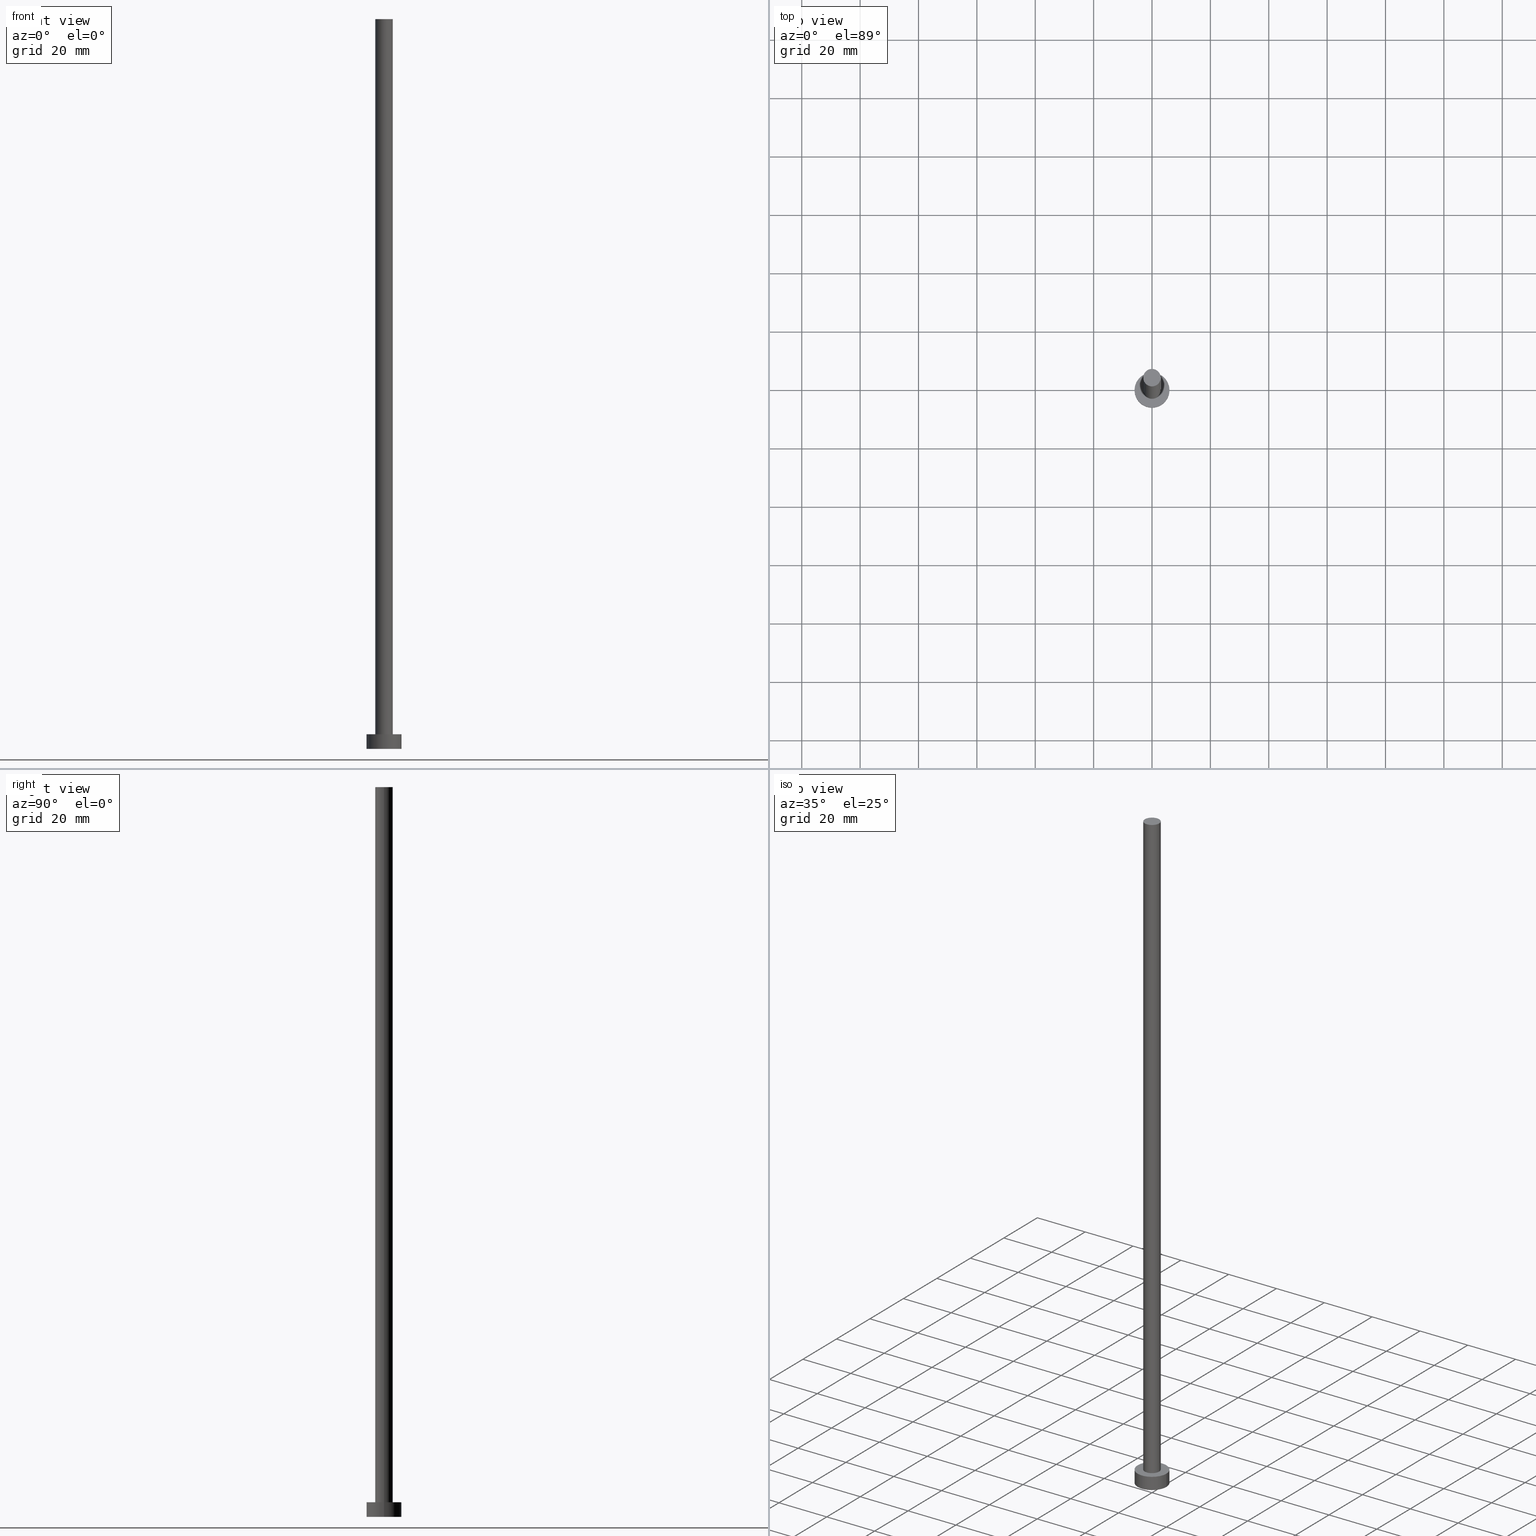
[diagram: canonical four-view strip — front | top / right | iso, engineering-drawing reading convention]
A machine part, canonical four-view strip (front | top / right | iso — engineering-drawing reading convention). The complete STEP part file that produces these views, byte-faithful:
ISO-10303-21;
HEADER;
FILE_DESCRIPTION (( 'STEP AP203' ),
    '1' );
FILE_NAME ('73fd.STEP',
    '2023-02-13T12:37:43',
    ( '' ),
    ( '' ),
    'SwSTEP 2.0',
    'SolidWorks 2019',
    '' );
FILE_SCHEMA (( 'CONFIG_CONTROL_DESIGN' ));
ENDSEC;

DATA;
#1 = CIRCLE ( 'NONE', #82, 6.000000000000000888 ) ;
#2 = PERSON ( 'NEUR�EN�', 'NEUR�EN�', 'NEUR�EN�', ('NEUR�EN�'), ('NEUR�EN�'), ('NEUR�EN�') ) ;
#3 = DIRECTION ( 'NONE',  ( 1.000000000000000000, 0.000000000000000000, -0.000000000000000000 ) ) ;
#4 = CIRCLE ( 'NONE', #67, 6.000000000000000888 ) ;
#5 = CALENDAR_DATE ( 2023, 13, 2 ) ;
#6 = APPLICATION_CONTEXT ( 'configuration controlled 3d designs of mechanical parts and assemblies' ) ;
#7 = DATE_AND_TIME ( #5, #143 ) ;
#8 = APPROVAL_PERSON_ORGANIZATION ( #160, #114, #117 ) ;
#9 = CYLINDRICAL_SURFACE ( 'NONE', #40, 6.000000000000000888 ) ;
#10 = DIRECTION ( 'NONE',  ( 0.000000000000000000, 0.000000000000000000, 1.000000000000000000 ) ) ;
#11 = ORIENTED_EDGE ( 'NONE', *, *, #78, .T. ) ;
#12 = DIRECTION ( 'NONE',  ( -0.000000000000000000, -0.000000000000000000, -1.000000000000000000 ) ) ;
#13 = CC_DESIGN_PERSON_AND_ORGANIZATION_ASSIGNMENT ( #206, #166, ( #43 ) ) ;
#14 = ORIENTED_EDGE ( 'NONE', *, *, #101, .T. ) ;
#15 = MECHANICAL_CONTEXT ( 'NONE', #6, 'mechanical' ) ;
#16 = APPROVAL_ROLE ( '' ) ;
#17 = AXIS2_PLACEMENT_3D ( 'NONE', #84, #163, #3 ) ;
#18 = CALENDAR_DATE ( 2023, 13, 2 ) ;
#19 = AXIS2_PLACEMENT_3D ( 'NONE', #153, #211, #103 ) ;
#20 = EDGE_CURVE ( 'NONE', #201, #32, #96, .T. ) ;
#21 = DIRECTION ( 'NONE',  ( 1.000000000000000000, 0.000000000000000000, 0.000000000000000000 ) ) ;
#22 = DIRECTION ( 'NONE',  ( -1.000000000000000000, 0.000000000000000000, 0.000000000000000000 ) ) ;
#23 = ORIENTED_EDGE ( 'NONE', *, *, #158, .F. ) ;
#24 = ADVANCED_FACE ( 'NONE', ( #73, #112 ), #235, .T. ) ;
#25 = FACE_OUTER_BOUND ( 'NONE', #205, .T. ) ;
#26 = COORDINATED_UNIVERSAL_TIME_OFFSET ( 1, 0, .AHEAD. ) ;
#27 = APPROVAL_STATUS ( 'not_yet_approved' ) ;
#28 = CALENDAR_DATE ( 2023, 13, 2 ) ;
#29 = AXIS2_PLACEMENT_3D ( 'NONE', #140, #10, #161 ) ;
#30 = APPROVAL_DATE_TIME ( #193, #114 ) ;
#31 = CARTESIAN_POINT ( 'NONE',  ( 0.000000000000000000, 0.000000000000000000, 5.000000000000000000 ) ) ;
#32 = VERTEX_POINT ( 'NONE', #210 ) ;
#33 = ADVANCED_BREP_SHAPE_REPRESENTATION ( '73fd', ( #237, #19 ), #113 ) ;
#34 = CARTESIAN_POINT ( 'NONE',  ( 3.000000000000000444, 3.673940397442060361E-16, 250.0000000000000000 ) ) ;
#35 = CIRCLE ( 'NONE', #52, 3.000000000000000444 ) ;
#36 = DIRECTION ( 'NONE',  ( 1.000000000000000000, 0.000000000000000000, 0.000000000000000000 ) ) ;
#37 =( NAMED_UNIT ( * ) SI_UNIT ( $, .STERADIAN. ) SOLID_ANGLE_UNIT ( ) );
#38 = PERSON_AND_ORGANIZATION_ROLE ( 'design_supplier' ) ;
#39 = CYLINDRICAL_SURFACE ( 'NONE', #183, 3.000000000000000444 ) ;
#40 = AXIS2_PLACEMENT_3D ( 'NONE', #81, #118, #102 ) ;
#41 = ORIENTED_EDGE ( 'NONE', *, *, #158, .T. ) ;
#42 = DATE_TIME_ROLE ( 'classification_date' ) ;
#43 = PRODUCT ( '73fd', '73fd', '', ( #15 ) ) ;
#44 = CIRCLE ( 'NONE', #128, 6.000000000000000888 ) ;
#45 = VERTEX_POINT ( 'NONE', #127 ) ;
#46 = CARTESIAN_POINT ( 'NONE',  ( 3.000000000000000444, 3.673940397442060361E-16, 5.000000000000000000 ) ) ;
#47 = EDGE_LOOP ( 'NONE', ( #188, #199 ) ) ;
#48 = CLOSED_SHELL ( 'NONE', ( #185, #194, #129, #24, #151, #59, #63 ) ) ;
#49 = EDGE_LOOP ( 'NONE', ( #144, #224, #186, #83 ) ) ;
#50 = APPLICATION_PROTOCOL_DEFINITION ( 'international standard', 'config_control_design', 1994, #6 ) ;
#51 = CC_DESIGN_DATE_AND_TIME_ASSIGNMENT ( #111, #165, ( #248 ) ) ;
#52 = AXIS2_PLACEMENT_3D ( 'NONE', #157, #98, #155 ) ;
#53 = DIRECTION ( 'NONE',  ( 1.000000000000000000, 0.000000000000000000, -0.000000000000000000 ) ) ;
#54 = DIRECTION ( 'NONE',  ( 0.000000000000000000, 0.000000000000000000, 1.000000000000000000 ) ) ;
#55 = EDGE_CURVE ( 'NONE', #124, #164, #35, .T. ) ;
#56 = CALENDAR_DATE ( 2023, 13, 2 ) ;
#57 = DIRECTION ( 'NONE',  ( -0.000000000000000000, -0.000000000000000000, -1.000000000000000000 ) ) ;
#58 = LOCAL_TIME ( 13, 37, 43.00000000000000000, #189 ) ;
#59 = ADVANCED_FACE ( 'NONE', ( #174 ), #39, .T. ) ;
#60 = PERSON_AND_ORGANIZATION ( #2, #244 ) ;
#61 = DATE_AND_TIME ( #215, #204 ) ;
#62 = LOCAL_TIME ( 13, 37, 43.00000000000000000, #159 ) ;
#63 = ADVANCED_FACE ( 'NONE', ( #25 ), #92, .T. ) ;
#64 = ORIENTED_EDGE ( 'NONE', *, *, #78, .F. ) ;
#65 = ORIENTED_EDGE ( 'NONE', *, *, #20, .T. ) ;
#66 = ORIENTED_EDGE ( 'NONE', *, *, #137, .F. ) ;
#67 = AXIS2_PLACEMENT_3D ( 'NONE', #31, #100, #36 ) ;
#68 = PERSON_AND_ORGANIZATION ( #2, #244 ) ;
#69 = AXIS2_PLACEMENT_3D ( 'NONE', #225, #203, #148 ) ;
#70 = PRODUCT_DEFINITION_FORMATION_WITH_SPECIFIED_SOURCE ( 'LIBOVOLN�', '', #43, .NOT_KNOWN. ) ;
#71 = DIRECTION ( 'NONE',  ( 1.000000000000000000, 0.000000000000000000, 0.000000000000000000 ) ) ;
#72 = DIRECTION ( 'NONE',  ( -1.000000000000000000, 0.000000000000000000, 0.000000000000000000 ) ) ;
#73 = FACE_BOUND ( 'NONE', #47, .T. ) ;
#74 = DIRECTION ( 'NONE',  ( -0.000000000000000000, -0.000000000000000000, -1.000000000000000000 ) ) ;
#75 = CARTESIAN_POINT ( 'NONE',  ( -3.000000000000000444, 0.000000000000000000, 5.000000000000000000 ) ) ;
#76 = EDGE_LOOP ( 'NONE', ( #162, #23 ) ) ;
#77 = CIRCLE ( 'NONE', #132, 3.000000000000000444 ) ;
#78 = EDGE_CURVE ( 'NONE', #85, #141, #77, .T. ) ;
#79 = UNCERTAINTY_MEASURE_WITH_UNIT (LENGTH_MEASURE( 1.000000000000000082E-05 ), #171, 'distance_accuracy_value', 'NONE');
#80 = APPROVAL_DATE_TIME ( #7, #178 ) ;
#81 = CARTESIAN_POINT ( 'NONE',  ( 0.000000000000000000, 0.000000000000000000, 5.000000000000000000 ) ) ;
#82 = AXIS2_PLACEMENT_3D ( 'NONE', #105, #150, #126 ) ;
#83 = ORIENTED_EDGE ( 'NONE', *, *, #55, .T. ) ;
#84 = CARTESIAN_POINT ( 'NONE',  ( 0.000000000000000000, 0.000000000000000000, 0.000000000000000000 ) ) ;
#85 = VERTEX_POINT ( 'NONE', #131 ) ;
#86 = EDGE_LOOP ( 'NONE', ( #168, #247 ) ) ;
#87 = CC_DESIGN_PERSON_AND_ORGANIZATION_ASSIGNMENT ( #217, #38, ( #70 ) ) ;
#88 = CC_DESIGN_APPROVAL ( #114, ( #198 ) ) ;
#89 = CARTESIAN_POINT ( 'NONE',  ( 6.000000000000000888, 7.347880794884120722E-16, 5.000000000000000000 ) ) ;
#90 = CARTESIAN_POINT ( 'NONE',  ( 6.000000000000000888, 7.347880794884120722E-16, 5.000000000000000000 ) ) ;
#91 = CYLINDRICAL_SURFACE ( 'NONE', #69, 6.000000000000000888 ) ;
#92 = PLANE ( 'NONE',  #195 ) ;
#93 = VECTOR ( 'NONE', #74, 1000.000000000000000 ) ;
#94 = APPROVAL ( #228, 'NEUR�EN�' ) ;
#95 = CARTESIAN_POINT ( 'NONE',  ( 0.000000000000000000, 0.000000000000000000, 5.000000000000000000 ) ) ;
#96 = LINE ( 'NONE', #90, #93 ) ;
#97 = APPROVAL_STATUS ( 'not_yet_approved' ) ;
#98 = DIRECTION ( 'NONE',  ( 0.000000000000000000, 0.000000000000000000, 1.000000000000000000 ) ) ;
#99 = CIRCLE ( 'NONE', #29, 6.000000000000000888 ) ;
#100 = DIRECTION ( 'NONE',  ( 0.000000000000000000, 0.000000000000000000, 1.000000000000000000 ) ) ;
#101 = EDGE_CURVE ( 'NONE', #107, #45, #191, .T. ) ;
#102 = DIRECTION ( 'NONE',  ( -1.000000000000000000, 0.000000000000000000, 0.000000000000000000 ) ) ;
#103 = DIRECTION ( 'NONE',  ( 1.000000000000000000, 0.000000000000000000, 0.000000000000000000 ) ) ;
#104 = EDGE_LOOP ( 'NONE', ( #66, #65, #41, #110 ) ) ;
#105 = CARTESIAN_POINT ( 'NONE',  ( 0.000000000000000000, 0.000000000000000000, 0.000000000000000000 ) ) ;
#106 = CYLINDRICAL_SURFACE ( 'NONE', #179, 3.000000000000000444 ) ;
#107 = VERTEX_POINT ( 'NONE', #135 ) ;
#108 = DIRECTION ( 'NONE',  ( 0.000000000000000000, 0.000000000000000000, 1.000000000000000000 ) ) ;
#109 = CARTESIAN_POINT ( 'NONE',  ( 0.000000000000000000, 0.000000000000000000, 250.0000000000000000 ) ) ;
#110 = ORIENTED_EDGE ( 'NONE', *, *, #101, .F. ) ;
#111 = DATE_AND_TIME ( #56, #169 ) ;
#112 = FACE_OUTER_BOUND ( 'NONE', #86, .T. ) ;
#113 =( GEOMETRIC_REPRESENTATION_CONTEXT ( 3 ) GLOBAL_UNCERTAINTY_ASSIGNED_CONTEXT ( ( #79 ) ) GLOBAL_UNIT_ASSIGNED_CONTEXT ( ( #171, #230, #37 ) ) REPRESENTATION_CONTEXT ( 'NONE', 'WORKASPACE' ) );
#114 = APPROVAL ( #27, 'NEUR�EN�' ) ;
#115 = AXIS2_PLACEMENT_3D ( 'NONE', #95, #152, #53 ) ;
#116 = PRODUCT_RELATED_PRODUCT_CATEGORY ( 'detail', '', ( #43 ) ) ;
#117 = APPROVAL_ROLE ( '' ) ;
#118 = DIRECTION ( 'NONE',  ( -0.000000000000000000, -0.000000000000000000, -1.000000000000000000 ) ) ;
#119 = ORIENTED_EDGE ( 'NONE', *, *, #134, .F. ) ;
#120 = ORIENTED_EDGE ( 'NONE', *, *, #242, .T. ) ;
#121 = FACE_OUTER_BOUND ( 'NONE', #76, .T. ) ;
#122 = ORIENTED_EDGE ( 'NONE', *, *, #145, .T. ) ;
#123 = CC_DESIGN_PERSON_AND_ORGANIZATION_ASSIGNMENT ( #220, #197, ( #198 ) ) ;
#124 = VERTEX_POINT ( 'NONE', #75 ) ;
#125 = CARTESIAN_POINT ( 'NONE',  ( 0.000000000000000000, 0.000000000000000000, 250.0000000000000000 ) ) ;
#126 = DIRECTION ( 'NONE',  ( 1.000000000000000000, 0.000000000000000000, 0.000000000000000000 ) ) ;
#127 = CARTESIAN_POINT ( 'NONE',  ( -6.000000000000000888, 0.000000000000000000, 0.000000000000000000 ) ) ;
#128 = AXIS2_PLACEMENT_3D ( 'NONE', #245, #219, #223 ) ;
#129 = ADVANCED_FACE ( 'NONE', ( #213 ), #9, .T. ) ;
#130 = CC_DESIGN_SECURITY_CLASSIFICATION ( #198, ( #70 ) ) ;
#131 = CARTESIAN_POINT ( 'NONE',  ( 3.000000000000000444, 3.673940397442060361E-16, 250.0000000000000000 ) ) ;
#132 = AXIS2_PLACEMENT_3D ( 'NONE', #154, #54, #236 ) ;
#133 = APPROVAL_DATE_TIME ( #252, #94 ) ;
#134 = EDGE_CURVE ( 'NONE', #107, #201, #4, .T. ) ;
#135 = CARTESIAN_POINT ( 'NONE',  ( -6.000000000000000888, 0.000000000000000000, 5.000000000000000000 ) ) ;
#136 = COORDINATED_UNIVERSAL_TIME_OFFSET ( 1, 0, .AHEAD. ) ;
#137 = EDGE_CURVE ( 'NONE', #201, #107, #99, .T. ) ;
#138 = PERSON_AND_ORGANIZATION_ROLE ( 'creator' ) ;
#139 = DIRECTION ( 'NONE',  ( -0.000000000000000000, -0.000000000000000000, -1.000000000000000000 ) ) ;
#140 = CARTESIAN_POINT ( 'NONE',  ( 0.000000000000000000, 0.000000000000000000, 5.000000000000000000 ) ) ;
#141 = VERTEX_POINT ( 'NONE', #200 ) ;
#142 = CIRCLE ( 'NONE', #177, 3.000000000000000444 ) ;
#143 = LOCAL_TIME ( 13, 37, 43.00000000000000000, #240 ) ;
#144 = ORIENTED_EDGE ( 'NONE', *, *, #145, .F. ) ;
#145 = EDGE_CURVE ( 'NONE', #85, #164, #241, .T. ) ;
#146 = CARTESIAN_POINT ( 'NONE',  ( 0.000000000000000000, 0.000000000000000000, 5.000000000000000000 ) ) ;
#147 = EDGE_LOOP ( 'NONE', ( #64, #122, #222, #243 ) ) ;
#148 = DIRECTION ( 'NONE',  ( -1.000000000000000000, 0.000000000000000000, 0.000000000000000000 ) ) ;
#149 = CARTESIAN_POINT ( 'NONE',  ( -3.000000000000000444, 0.000000000000000000, 250.0000000000000000 ) ) ;
#150 = DIRECTION ( 'NONE',  ( 0.000000000000000000, 0.000000000000000000, 1.000000000000000000 ) ) ;
#151 = ADVANCED_FACE ( 'NONE', ( #121 ), #182, .F. ) ;
#152 = DIRECTION ( 'NONE',  ( 0.000000000000000000, 0.000000000000000000, 1.000000000000000000 ) ) ;
#153 = CARTESIAN_POINT ( 'NONE',  ( 0.000000000000000000, 0.000000000000000000, 0.000000000000000000 ) ) ;
#154 = CARTESIAN_POINT ( 'NONE',  ( 0.000000000000000000, 0.000000000000000000, 250.0000000000000000 ) ) ;
#155 = DIRECTION ( 'NONE',  ( 1.000000000000000000, 0.000000000000000000, 0.000000000000000000 ) ) ;
#156 = CC_DESIGN_DATE_AND_TIME_ASSIGNMENT ( #61, #42, ( #198 ) ) ;
#157 = CARTESIAN_POINT ( 'NONE',  ( 0.000000000000000000, 0.000000000000000000, 5.000000000000000000 ) ) ;
#158 = EDGE_CURVE ( 'NONE', #32, #45, #44, .T. ) ;
#159 = COORDINATED_UNIVERSAL_TIME_OFFSET ( 1, 0, .AHEAD. ) ;
#160 = PERSON_AND_ORGANIZATION ( #2, #244 ) ;
#161 = DIRECTION ( 'NONE',  ( 1.000000000000000000, 0.000000000000000000, 0.000000000000000000 ) ) ;
#162 = ORIENTED_EDGE ( 'NONE', *, *, #242, .F. ) ;
#163 = DIRECTION ( 'NONE',  ( 0.000000000000000000, 0.000000000000000000, 1.000000000000000000 ) ) ;
#164 = VERTEX_POINT ( 'NONE', #46 ) ;
#165 = DATE_TIME_ROLE ( 'creation_date' ) ;
#166 = PERSON_AND_ORGANIZATION_ROLE ( 'design_owner' ) ;
#167 = VECTOR ( 'NONE', #139, 1000.000000000000000 ) ;
#168 = ORIENTED_EDGE ( 'NONE', *, *, #134, .T. ) ;
#169 = LOCAL_TIME ( 13, 37, 43.00000000000000000, #26 ) ;
#170 = ORIENTED_EDGE ( 'NONE', *, *, #20, .F. ) ;
#171 =( LENGTH_UNIT ( ) NAMED_UNIT ( * ) SI_UNIT ( .MILLI., .METRE. ) );
#172 = CARTESIAN_POINT ( 'NONE',  ( 0.000000000000000000, 0.000000000000000000, 250.0000000000000000 ) ) ;
#173 = EDGE_CURVE ( 'NONE', #141, #124, #202, .T. ) ;
#174 = FACE_OUTER_BOUND ( 'NONE', #49, .T. ) ;
#175 = AXIS2_PLACEMENT_3D ( 'NONE', #232, #108, #71 ) ;
#176 = APPLICATION_CONTEXT ( 'configuration controlled 3d designs of mechanical parts and assemblies' ) ;
#177 = AXIS2_PLACEMENT_3D ( 'NONE', #146, #208, #21 ) ;
#178 = APPROVAL ( #97, 'NEUR�EN�' ) ;
#179 = AXIS2_PLACEMENT_3D ( 'NONE', #125, #207, #72 ) ;
#180 = CC_DESIGN_APPROVAL ( #94, ( #248 ) ) ;
#181 = DESIGN_CONTEXT ( 'detailed design', #176, 'design' ) ;
#182 = PLANE ( 'NONE',  #17 ) ;
#183 = AXIS2_PLACEMENT_3D ( 'NONE', #109, #190, #22 ) ;
#184 = SECURITY_CLASSIFICATION_LEVEL ( 'unclassified' ) ;
#185 = ADVANCED_FACE ( 'NONE', ( #233 ), #106, .T. ) ;
#186 = ORIENTED_EDGE ( 'NONE', *, *, #173, .T. ) ;
#187 = APPLICATION_PROTOCOL_DEFINITION ( 'international standard', 'config_control_design', 1994, #176 ) ;
#188 = ORIENTED_EDGE ( 'NONE', *, *, #55, .F. ) ;
#189 = COORDINATED_UNIVERSAL_TIME_OFFSET ( 1, 0, .AHEAD. ) ;
#190 = DIRECTION ( 'NONE',  ( -0.000000000000000000, -0.000000000000000000, -1.000000000000000000 ) ) ;
#191 = LINE ( 'NONE', #255, #216 ) ;
#192 = DIRECTION ( 'NONE',  ( 1.000000000000000000, 0.000000000000000000, -0.000000000000000000 ) ) ;
#193 = DATE_AND_TIME ( #28, #62 ) ;
#194 = ADVANCED_FACE ( 'NONE', ( #249 ), #91, .T. ) ;
#195 = AXIS2_PLACEMENT_3D ( 'NONE', #172, #254, #192 ) ;
#196 = CC_DESIGN_PERSON_AND_ORGANIZATION_ASSIGNMENT ( #60, #138, ( #70 ) ) ;
#197 = PERSON_AND_ORGANIZATION_ROLE ( 'classification_officer' ) ;
#198 = SECURITY_CLASSIFICATION ( '', '', #184 ) ;
#199 = ORIENTED_EDGE ( 'NONE', *, *, #253, .F. ) ;
#200 = CARTESIAN_POINT ( 'NONE',  ( -3.000000000000000444, 0.000000000000000000, 250.0000000000000000 ) ) ;
#201 = VERTEX_POINT ( 'NONE', #89 ) ;
#202 = LINE ( 'NONE', #149, #209 ) ;
#203 = DIRECTION ( 'NONE',  ( -0.000000000000000000, -0.000000000000000000, -1.000000000000000000 ) ) ;
#204 = LOCAL_TIME ( 13, 37, 43.00000000000000000, #136 ) ;
#205 = EDGE_LOOP ( 'NONE', ( #226, #11 ) ) ;
#206 = PERSON_AND_ORGANIZATION ( #2, #244 ) ;
#207 = DIRECTION ( 'NONE',  ( -0.000000000000000000, -0.000000000000000000, -1.000000000000000000 ) ) ;
#208 = DIRECTION ( 'NONE',  ( 0.000000000000000000, 0.000000000000000000, 1.000000000000000000 ) ) ;
#209 = VECTOR ( 'NONE', #12, 1000.000000000000000 ) ;
#210 = CARTESIAN_POINT ( 'NONE',  ( 6.000000000000000888, 7.347880794884120722E-16, 0.000000000000000000 ) ) ;
#211 = DIRECTION ( 'NONE',  ( 0.000000000000000000, 0.000000000000000000, 1.000000000000000000 ) ) ;
#212 = PERSON_AND_ORGANIZATION ( #2, #244 ) ;
#213 = FACE_OUTER_BOUND ( 'NONE', #246, .T. ) ;
#214 = PRODUCT_DEFINITION_SHAPE ( 'NONE', 'NONE',  #248 ) ;
#215 = CALENDAR_DATE ( 2023, 13, 2 ) ;
#216 = VECTOR ( 'NONE', #57, 1000.000000000000000 ) ;
#217 = PERSON_AND_ORGANIZATION ( #2, #244 ) ;
#218 = CC_DESIGN_PERSON_AND_ORGANIZATION_ASSIGNMENT ( #212, #234, ( #248 ) ) ;
#219 = DIRECTION ( 'NONE',  ( 0.000000000000000000, 0.000000000000000000, 1.000000000000000000 ) ) ;
#220 = PERSON_AND_ORGANIZATION ( #2, #244 ) ;
#221 = CC_DESIGN_APPROVAL ( #178, ( #70 ) ) ;
#222 = ORIENTED_EDGE ( 'NONE', *, *, #253, .T. ) ;
#223 = DIRECTION ( 'NONE',  ( 1.000000000000000000, 0.000000000000000000, 0.000000000000000000 ) ) ;
#224 = ORIENTED_EDGE ( 'NONE', *, *, #227, .F. ) ;
#225 = CARTESIAN_POINT ( 'NONE',  ( 0.000000000000000000, 0.000000000000000000, 5.000000000000000000 ) ) ;
#226 = ORIENTED_EDGE ( 'NONE', *, *, #227, .T. ) ;
#227 = EDGE_CURVE ( 'NONE', #141, #85, #250, .T. ) ;
#228 = APPROVAL_STATUS ( 'not_yet_approved' ) ;
#229 = APPROVAL_PERSON_ORGANIZATION ( #231, #178, #238 ) ;
#230 =( NAMED_UNIT ( * ) PLANE_ANGLE_UNIT ( ) SI_UNIT ( $, .RADIAN. ) );
#231 = PERSON_AND_ORGANIZATION ( #2, #244 ) ;
#232 = CARTESIAN_POINT ( 'NONE',  ( 0.000000000000000000, 0.000000000000000000, 250.0000000000000000 ) ) ;
#233 = FACE_OUTER_BOUND ( 'NONE', #147, .T. ) ;
#234 = PERSON_AND_ORGANIZATION_ROLE ( 'creator' ) ;
#235 = PLANE ( 'NONE',  #115 ) ;
#236 = DIRECTION ( 'NONE',  ( 1.000000000000000000, 0.000000000000000000, 0.000000000000000000 ) ) ;
#237 = MANIFOLD_SOLID_BREP ( 'P�idat vysunut�m3', #48 ) ;
#238 = APPROVAL_ROLE ( '' ) ;
#239 = SHAPE_DEFINITION_REPRESENTATION ( #214, #33 ) ;
#240 = COORDINATED_UNIVERSAL_TIME_OFFSET ( 1, 0, .AHEAD. ) ;
#241 = LINE ( 'NONE', #34, #167 ) ;
#242 = EDGE_CURVE ( 'NONE', #45, #32, #1, .T. ) ;
#243 = ORIENTED_EDGE ( 'NONE', *, *, #173, .F. ) ;
#244 = ORGANIZATION ( 'NEUR�EN�', 'NEUR�EN�', '' ) ;
#245 = CARTESIAN_POINT ( 'NONE',  ( 0.000000000000000000, 0.000000000000000000, 0.000000000000000000 ) ) ;
#246 = EDGE_LOOP ( 'NONE', ( #170, #119, #14, #120 ) ) ;
#247 = ORIENTED_EDGE ( 'NONE', *, *, #137, .T. ) ;
#248 = PRODUCT_DEFINITION ( 'NEZN�M�', '', #70, #181 ) ;
#249 = FACE_OUTER_BOUND ( 'NONE', #104, .T. ) ;
#250 = CIRCLE ( 'NONE', #175, 3.000000000000000444 ) ;
#251 = APPROVAL_PERSON_ORGANIZATION ( #68, #94, #16 ) ;
#252 = DATE_AND_TIME ( #18, #58 ) ;
#253 = EDGE_CURVE ( 'NONE', #164, #124, #142, .T. ) ;
#254 = DIRECTION ( 'NONE',  ( 0.000000000000000000, 0.000000000000000000, 1.000000000000000000 ) ) ;
#255 = CARTESIAN_POINT ( 'NONE',  ( -6.000000000000000888, 0.000000000000000000, 5.000000000000000000 ) ) ;
ENDSEC;
END-ISO-10303-21;
